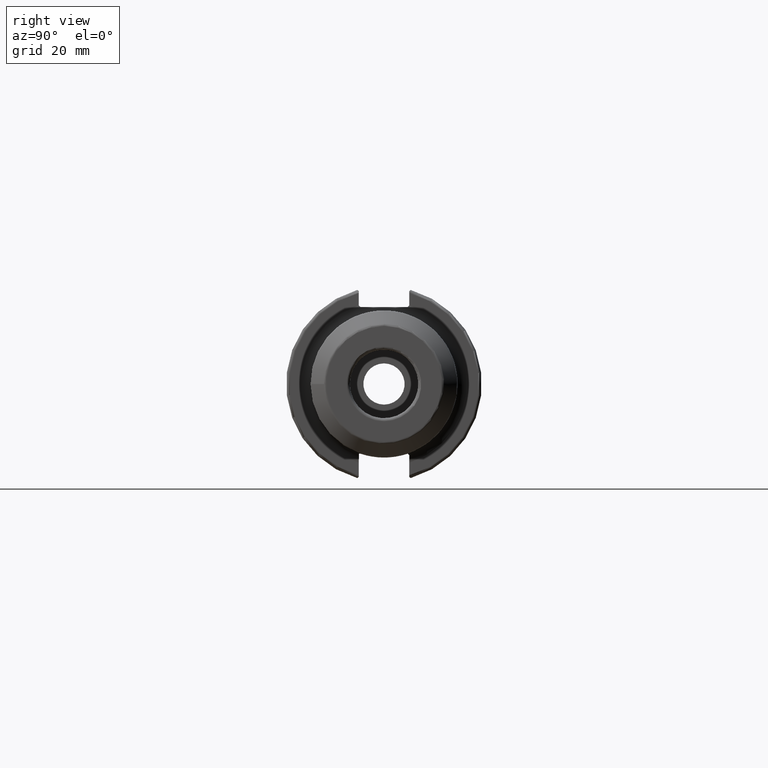
[diagram: clean part render]
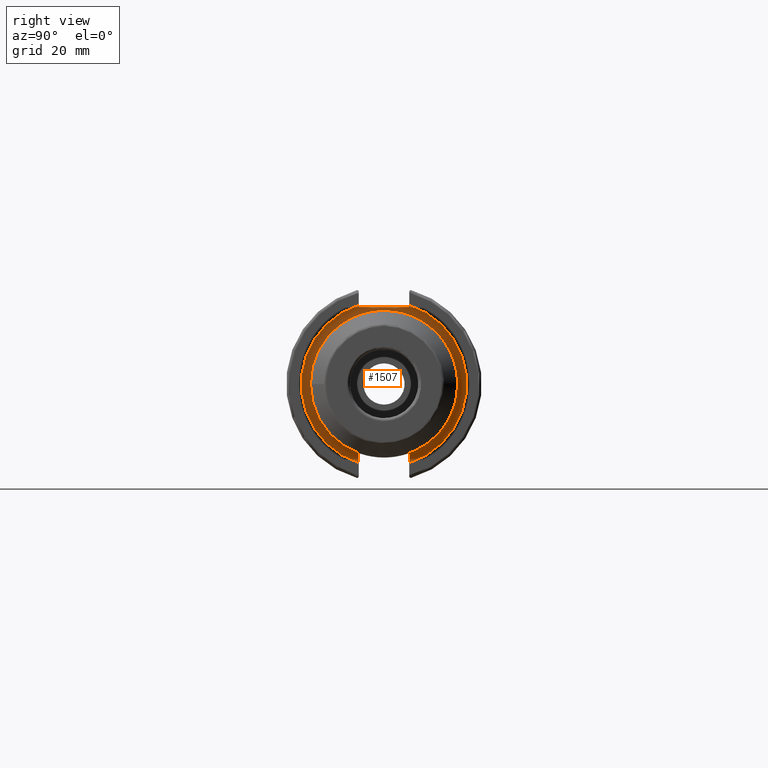
[diagram: same view with one face highlighted and labeled with its STEP entity id]
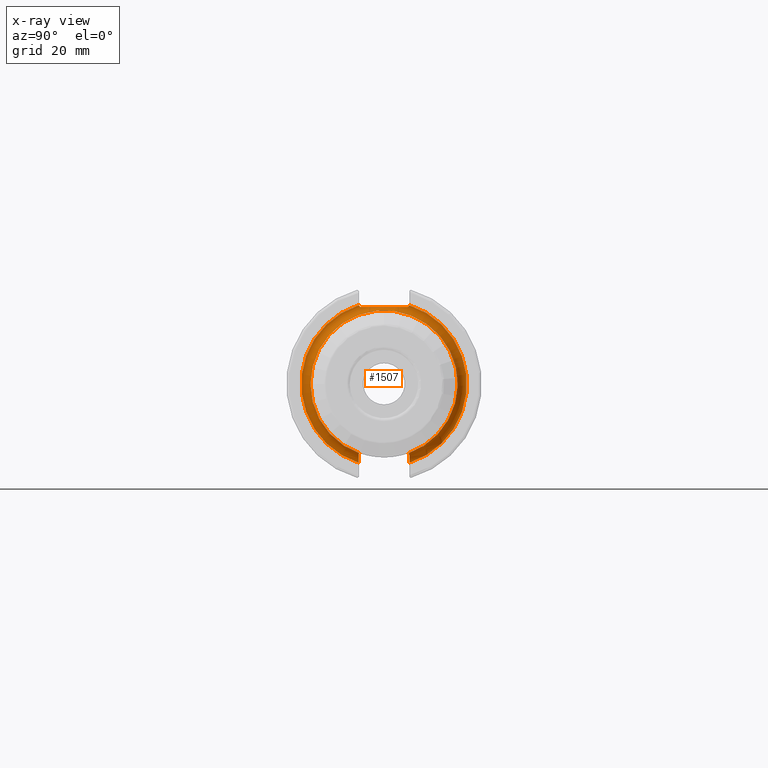
[diagram: x-ray of the same camera — body ghosted, the highlighted face saturated]
A machine part, right view. The second image highlights one B-rep face of the part: STEP entity #1507.
The next image is the same camera in x-ray: the body ghosted, the highlighted face saturated — about 2% of this face is hidden behind the body in this view.
In plain terms, the highlighted toroidal blend (fillet) surface has major radius 26.876 mm and minor (blend) radius 3 mm.
Its self-contained STEP definition (entity closure, byte-faithful):
#51=B_SPLINE_CURVE_WITH_KNOTS('',3,(#2311,#2312,#2313,#2314,#2315,#2316,
#2317,#2318,#2319,#2320,#2321,#2322,#2323,#2324),.UNSPECIFIED.,.F.,.F.,
(4,2,2,2,2,2,4),(2.59824424777041,2.69300090795709,3.00822809968691,3.32345529141673,
3.63868248314655,3.95390967487636,4.04866633401975),.UNSPECIFIED.);
#52=B_SPLINE_CURVE_WITH_KNOTS('',3,(#2326,#2327,#2328,#2329),
 .UNSPECIFIED.,.F.,.F.,(4,4),(1.34402426777753,1.41043818841018),
 .UNSPECIFIED.);
#53=B_SPLINE_CURVE_WITH_KNOTS('',3,(#2331,#2332,#2333,#2334),
 .UNSPECIFIED.,.F.,.F.,(4,4),(1.3582620328901,1.36790240305461),
 .UNSPECIFIED.);
#54=B_SPLINE_CURVE_WITH_KNOTS('',3,(#2338,#2339,#2340,#2341,#2342,#2343,
#2344,#2345,#2346,#2347),.UNSPECIFIED.,.F.,.F.,(4,2,2,2,4),(0.454409762073989,
0.57318245270071,0.689573099757892,0.802140600437802,0.818012972771279),
 .UNSPECIFIED.);
#55=B_SPLINE_CURVE_WITH_KNOTS('',3,(#2348,#2349,#2350,#2351,#2352,#2353,
#2354,#2355),.UNSPECIFIED.,.F.,.F.,(4,2,2,4),(1.24709527364165,1.27283308836636,
1.31785492208874,1.35337360154452),.UNSPECIFIED.);
#56=B_SPLINE_CURVE_WITH_KNOTS('',3,(#2357,#2358,#2359,#2360,#2361,#2362,
#2363,#2364),.UNSPECIFIED.,.F.,.F.,(4,2,2,4),(1.35337360154452,1.38889228100029,
1.43391411472267,1.45958140543066),.UNSPECIFIED.);
#57=B_SPLINE_CURVE_WITH_KNOTS('',3,(#2366,#2367,#2368,#2369,#2370,#2371),
 .UNSPECIFIED.,.F.,.F.,(4,2,4),(1.093062247487,1.1509185282238,1.18835325156573),
 .UNSPECIFIED.);
#58=B_SPLINE_CURVE_WITH_KNOTS('',3,(#2373,#2374,#2375,#2376),
 .UNSPECIFIED.,.F.,.F.,(4,4),(1.11119444069324,1.11772827403569),
 .UNSPECIFIED.);
#59=B_SPLINE_CURVE_WITH_KNOTS('',3,(#2378,#2379,#2380,#2381,#2382,#2383,
#2384,#2385),.UNSPECIFIED.,.F.,.F.,(4,2,2,4),(1.09937688280315,1.13273906537071,
1.24912971242789,1.36790240305461),.UNSPECIFIED.);
#60=B_SPLINE_CURVE_WITH_KNOTS('',3,(#2389,#2390,#2391,#2392),
 .UNSPECIFIED.,.F.,.F.,(4,4),(0.454409762073988,0.464050132239488),
 .UNSPECIFIED.);
#61=B_SPLINE_CURVE_WITH_KNOTS('',3,(#2393,#2394,#2395,#2396),
 .UNSPECIFIED.,.F.,.F.,(4,4),(0.47951061293858,0.545924532443585),
 .UNSPECIFIED.);
#359=FACE_OUTER_BOUND('',#447,.T.);
#447=EDGE_LOOP('',(#1052,#1053,#1054,#1055,#1056,#1057,#1058,#1059,#1060,
#1061,#1062,#1063,#1064,#1065,#1066));
#555=CIRCLE('',#1631,23.876);
#556=CIRCLE('',#1632,23.876);
#557=CIRCLE('',#1634,26.876);
#558=CIRCLE('',#1635,26.876);
#629=VERTEX_POINT('',#2280);
#630=VERTEX_POINT('',#2282);
#633=VERTEX_POINT('',#2305);
#634=VERTEX_POINT('',#2309);
#635=VERTEX_POINT('',#2310);
#636=VERTEX_POINT('',#2325);
#637=VERTEX_POINT('',#2330);
#638=VERTEX_POINT('',#2335);
#639=VERTEX_POINT('',#2337);
#640=VERTEX_POINT('',#2356);
#641=VERTEX_POINT('',#2365);
#642=VERTEX_POINT('',#2372);
#643=VERTEX_POINT('',#2377);
#644=VERTEX_POINT('',#2386);
#645=VERTEX_POINT('',#2388);
#793=EDGE_CURVE('',#630,#629,#555,.T.);
#797=EDGE_CURVE('',#629,#633,#556,.T.);
#798=EDGE_CURVE('',#634,#635,#51,.F.);
#799=EDGE_CURVE('',#636,#634,#52,.F.);
#800=EDGE_CURVE('',#637,#636,#53,.F.);
#801=EDGE_CURVE('',#637,#638,#557,.T.);
#802=EDGE_CURVE('',#638,#639,#54,.T.);
#803=EDGE_CURVE('',#639,#630,#55,.T.);
#804=EDGE_CURVE('',#640,#633,#56,.F.);
#805=EDGE_CURVE('',#640,#641,#57,.T.);
#806=EDGE_CURVE('',#642,#641,#58,.F.);
#807=EDGE_CURVE('',#643,#642,#59,.F.);
#808=EDGE_CURVE('',#643,#644,#558,.T.);
#809=EDGE_CURVE('',#645,#644,#60,.F.);
#810=EDGE_CURVE('',#635,#645,#61,.F.);
#1052=ORIENTED_EDGE('',*,*,#798,.F.);
#1053=ORIENTED_EDGE('',*,*,#799,.F.);
#1054=ORIENTED_EDGE('',*,*,#800,.F.);
#1055=ORIENTED_EDGE('',*,*,#801,.T.);
#1056=ORIENTED_EDGE('',*,*,#802,.T.);
#1057=ORIENTED_EDGE('',*,*,#803,.T.);
#1058=ORIENTED_EDGE('',*,*,#793,.T.);
#1059=ORIENTED_EDGE('',*,*,#797,.T.);
#1060=ORIENTED_EDGE('',*,*,#804,.F.);
#1061=ORIENTED_EDGE('',*,*,#805,.T.);
#1062=ORIENTED_EDGE('',*,*,#806,.F.);
#1063=ORIENTED_EDGE('',*,*,#807,.F.);
#1064=ORIENTED_EDGE('',*,*,#808,.T.);
#1065=ORIENTED_EDGE('',*,*,#809,.F.);
#1066=ORIENTED_EDGE('',*,*,#810,.F.);
#1493=TOROIDAL_SURFACE('',#1633,26.876,3.);
#1507=ADVANCED_FACE('',(#359),#1493,.F.);
#1631=AXIS2_PLACEMENT_3D('',#2283,#1840,#1841);
#1632=AXIS2_PLACEMENT_3D('',#2307,#1844,#1845);
#1633=AXIS2_PLACEMENT_3D('',#2308,#1846,#1847);
#1634=AXIS2_PLACEMENT_3D('',#2336,#1848,#1849);
#1635=AXIS2_PLACEMENT_3D('',#2387,#1850,#1851);
#1840=DIRECTION('center_axis',(-1.,0.,0.));
#1841=DIRECTION('ref_axis',(0.,6.12323399573677E-17,1.));
#1844=DIRECTION('center_axis',(-1.,0.,0.));
#1845=DIRECTION('ref_axis',(0.,6.12323399573677E-17,1.));
#1846=DIRECTION('center_axis',(-1.,0.,0.));
#1847=DIRECTION('ref_axis',(0.,0.,1.));
#1848=DIRECTION('center_axis',(1.,0.,0.));
#1849=DIRECTION('ref_axis',(0.,6.12323399573677E-17,1.));
#1850=DIRECTION('center_axis',(1.,0.,0.));
#1851=DIRECTION('ref_axis',(0.,6.12323399573677E-17,1.));
#2280=CARTESIAN_POINT('',(22.05,-23.876,-2.92396669764422E-15));
#2282=CARTESIAN_POINT('',(22.05,-7.70086852244602,-22.6));
#2283=CARTESIAN_POINT('Origin',(22.05,0.,0.));
#2305=CARTESIAN_POINT('',(22.05,7.70086852244602,-22.6));
#2307=CARTESIAN_POINT('Origin',(22.05,0.,0.));
#2308=CARTESIAN_POINT('Origin',(22.05,0.,0.));
#2309=CARTESIAN_POINT('',(19.1376824514381,-7.69000000015696,25.0000000000523));
#2310=CARTESIAN_POINT('',(19.1376824479696,7.69000001127472,25.0000000056374));
#2311=CARTESIAN_POINT('Ctrl Pts',(19.1376824506201,7.69000001146293,25.));
#2312=CARTESIAN_POINT('Ctrl Pts',(19.1625604410244,7.34773404169411,25.));
#2313=CARTESIAN_POINT('Ctrl Pts',(19.1909267495362,7.01296912209476,25.));
#2314=CARTESIAN_POINT('Ctrl Pts',(19.3146466893475,5.65196800887508,25.));
#2315=CARTESIAN_POINT('Ctrl Pts',(19.4450175874642,4.50344584961347,25.));
#2316=CARTESIAN_POINT('Ctrl Pts',(19.6467687258613,2.20324028234169,25.));
#2317=CARTESIAN_POINT('Ctrl Pts',(19.7089267418554,1.05075730576606,25.));
#2318=CARTESIAN_POINT('Ctrl Pts',(19.7089267418554,-1.05075730576606,25.));
#2319=CARTESIAN_POINT('Ctrl Pts',(19.6467687258613,-2.20324028234169,25.));
#2320=CARTESIAN_POINT('Ctrl Pts',(19.4450175874642,-4.50344584961347,25.));
#2321=CARTESIAN_POINT('Ctrl Pts',(19.3146466893475,-5.65196800887508,25.));
#2322=CARTESIAN_POINT('Ctrl Pts',(19.190926749851,-7.01296911863138,25.));
#2323=CARTESIAN_POINT('Ctrl Pts',(19.1625604416486,-7.34773403432219,25.));
#2324=CARTESIAN_POINT('Ctrl Pts',(19.1376824514419,-7.69000000015724,25.));
#2325=CARTESIAN_POINT('',(19.0514435776501,-8.18999999999974,25.4999999999995));
#2326=CARTESIAN_POINT('Ctrl Pts',(19.1376824514219,-7.69000000010164,25.0000000001016));
#2327=CARTESIAN_POINT('Ctrl Pts',(19.0862361658711,-7.85649985781466,25.1664998578147));
#2328=CARTESIAN_POINT('Ctrl Pts',(19.0577178430264,-8.02927295304136,25.3392729530414));
#2329=CARTESIAN_POINT('Ctrl Pts',(19.05144357765,-8.19000000000252,25.5000000000025));
#2330=CARTESIAN_POINT('',(19.05,-8.19,25.5977201328556));
#2331=CARTESIAN_POINT('Ctrl Pts',(19.05144357765,-8.19,25.5000000000028));
#2332=CARTESIAN_POINT('Ctrl Pts',(19.0504690958042,-8.19,25.5329807604565));
#2333=CARTESIAN_POINT('Ctrl Pts',(19.05,-8.19,25.5655855656406));
#2334=CARTESIAN_POINT('Ctrl Pts',(19.05,-8.19,25.5977201328556));
#2335=CARTESIAN_POINT('',(19.05,-8.19,-25.5977201328556));
#2336=CARTESIAN_POINT('Origin',(19.05,0.,0.));
#2337=CARTESIAN_POINT('',(21.0768535431322,-8.19000000036267,-22.6));
#2338=CARTESIAN_POINT('Ctrl Pts',(19.05,-8.19,-25.5977201328556));
#2339=CARTESIAN_POINT('Ctrl Pts',(19.05,-8.19,-25.2018111640999));
#2340=CARTESIAN_POINT('Ctrl Pts',(19.1396703574018,-8.19,-24.7352594953398));
#2341=CARTESIAN_POINT('Ctrl Pts',(19.4313872804033,-8.19,-24.0076843239219));
#2342=CARTESIAN_POINT('Ctrl Pts',(19.6825018989717,-8.19,-23.6156511978987));
#2343=CARTESIAN_POINT('Ctrl Pts',(20.2122548770714,-8.19,-23.0662637226875));
#2344=CARTESIAN_POINT('Ctrl Pts',(20.5811442724451,-8.19,-22.8080705985925));
#2345=CARTESIAN_POINT('Ctrl Pts',(20.9744942720572,-8.19,-22.6390334237804));
#2346=CARTESIAN_POINT('Ctrl Pts',(21.0249481355467,-8.19,-22.618932424879));
#2347=CARTESIAN_POINT('Ctrl Pts',(21.0768535432147,-8.19,-22.6000000002327));
#2348=CARTESIAN_POINT('Ctrl Pts',(21.0768535433134,-8.19000000054288,-22.6));
#2349=CARTESIAN_POINT('Ctrl Pts',(21.139827076089,-8.12661649929915,-22.6));
#2350=CARTESIAN_POINT('Ctrl Pts',(21.2047880849471,-8.06745470927903,-22.6));
#2351=CARTESIAN_POINT('Ctrl Pts',(21.3886222014426,-7.91967937554337,-22.6));
#2352=CARTESIAN_POINT('Ctrl Pts',(21.5413936319375,-7.82432562253831,-22.6));
#2353=CARTESIAN_POINT('Ctrl Pts',(21.792313628471,-7.72885612516603,-22.6));
#2354=CARTESIAN_POINT('Ctrl Pts',(21.9316044018141,-7.70086852244603,-22.6));
#2355=CARTESIAN_POINT('Ctrl Pts',(22.05,-7.70086852244603,-22.6));
#2356=CARTESIAN_POINT('',(21.0773712358031,8.18947907757837,-22.6));
#2357=CARTESIAN_POINT('Ctrl Pts',(22.05,7.70086852244603,-22.6));
#2358=CARTESIAN_POINT('Ctrl Pts',(21.9316044018141,7.70086852244603,-22.6));
#2359=CARTESIAN_POINT('Ctrl Pts',(21.792313628471,7.72885612516603,-22.6));
#2360=CARTESIAN_POINT('Ctrl Pts',(21.5413936319375,7.82432562253831,-22.6));
#2361=CARTESIAN_POINT('Ctrl Pts',(21.3886222014426,7.91967937554337,-22.6));
#2362=CARTESIAN_POINT('Ctrl Pts',(21.2049713068905,8.06730742604153,-22.6));
#2363=CARTESIAN_POINT('Ctrl Pts',(21.1401830914144,8.12629233761669,-22.6));
#2364=CARTESIAN_POINT('Ctrl Pts',(21.0773712360283,8.18947907780238,-22.6));
#2365=CARTESIAN_POINT('',(20.2607876769813,8.15791741263729,-23.0679174126646));
#2366=CARTESIAN_POINT('Ctrl Pts',(21.0773712359023,8.1894790771317,-22.600000000289));
#2367=CARTESIAN_POINT('Ctrl Pts',(20.8979445951374,8.19150287625312,-22.6646728700477));
#2368=CARTESIAN_POINT('Ctrl Pts',(20.7258472829091,8.18752429775018,-22.7490343309294));
#2369=CARTESIAN_POINT('Ctrl Pts',(20.4575099528278,8.17367703265568,-22.9166582358143));
#2370=CARTESIAN_POINT('Ctrl Pts',(20.3566921654262,8.1664312536998,-22.9893235484492));
#2371=CARTESIAN_POINT('Ctrl Pts',(20.2607876769911,8.1579174126245,-23.0679174126702));
#2372=CARTESIAN_POINT('',(20.2069509122438,8.19000000000679,-23.1000000000136));
#2373=CARTESIAN_POINT('Ctrl Pts',(20.2607876769879,8.15791741266014,-23.0679174126601));
#2374=CARTESIAN_POINT('Ctrl Pts',(20.2426207228623,8.16849438652908,-23.0784943865291));
#2375=CARTESIAN_POINT('Ctrl Pts',(20.2246430563141,8.17921006830991,-23.0892100683099));
#2376=CARTESIAN_POINT('Ctrl Pts',(20.2069509122522,8.19000000000843,-23.1000000000084));
#2377=CARTESIAN_POINT('',(19.05,8.19,-25.5977201328556));
#2378=CARTESIAN_POINT('Ctrl Pts',(20.2069509122523,8.19,-23.1000000000114));
#2379=CARTESIAN_POINT('Ctrl Pts',(20.1147709526488,8.19,-23.1761497225445));
#2380=CARTESIAN_POINT('Ctrl Pts',(20.0289932042895,8.19,-23.256317713651));
#2381=CARTESIAN_POINT('Ctrl Pts',(19.6825018989717,8.19,-23.6156511978987));
#2382=CARTESIAN_POINT('Ctrl Pts',(19.4313872804033,8.19,-24.0076843239219));
#2383=CARTESIAN_POINT('Ctrl Pts',(19.1396703574018,8.19,-24.7352594953398));
#2384=CARTESIAN_POINT('Ctrl Pts',(19.05,8.19,-25.2018111640999));
#2385=CARTESIAN_POINT('Ctrl Pts',(19.05,8.19,-25.5977201328556));
#2386=CARTESIAN_POINT('',(19.05,8.19,25.5977201328556));
#2387=CARTESIAN_POINT('Origin',(19.05,0.,0.));
#2388=CARTESIAN_POINT('',(19.0514435776504,8.18999999999751,25.4999999999925));
#2389=CARTESIAN_POINT('Ctrl Pts',(19.05,8.19,25.5977201328556));
#2390=CARTESIAN_POINT('Ctrl Pts',(19.05,8.19,25.5655855656373));
#2391=CARTESIAN_POINT('Ctrl Pts',(19.0504690958043,8.19,25.5329807604497));
#2392=CARTESIAN_POINT('Ctrl Pts',(19.0514435776503,8.19,25.4999999999925));
#2393=CARTESIAN_POINT('Ctrl Pts',(19.0514435776503,8.18999999999502,25.499999999995));
#2394=CARTESIAN_POINT('Ctrl Pts',(19.0577134909456,8.02938443975233,25.3393844397523));
#2395=CARTESIAN_POINT('Ctrl Pts',(19.0862191875198,7.85655480883608,25.1665548088361));
#2396=CARTESIAN_POINT('Ctrl Pts',(19.1376824488016,7.69000000858185,25.0000000085819));